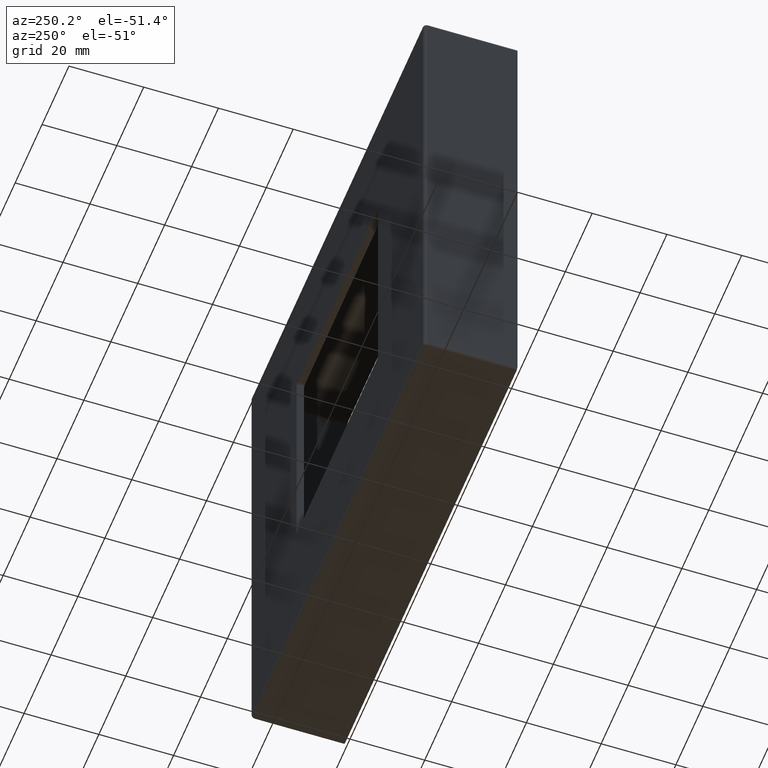
[diagram: clean part render]
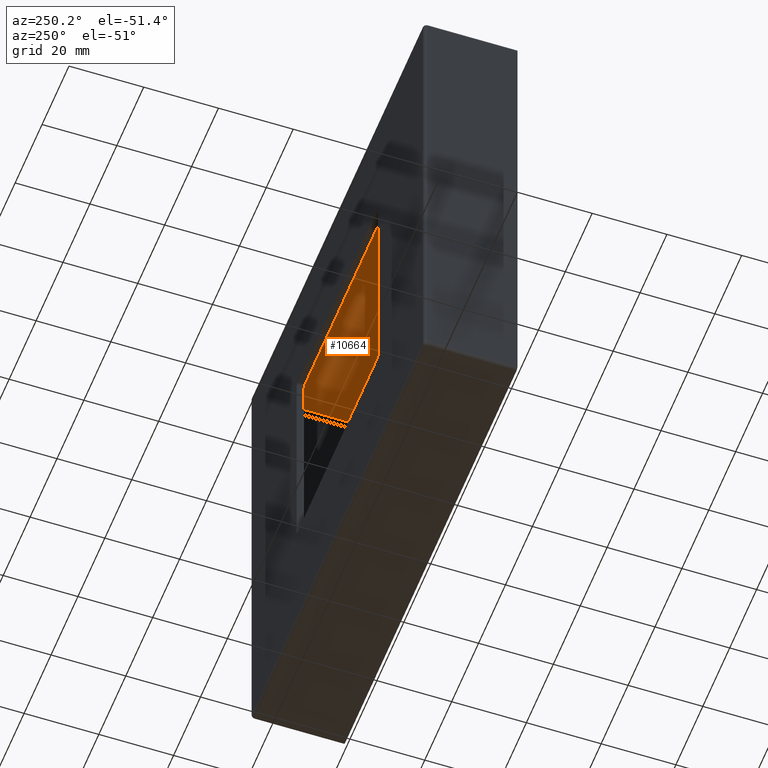
[diagram: same view with one face highlighted and labeled with its STEP entity id]
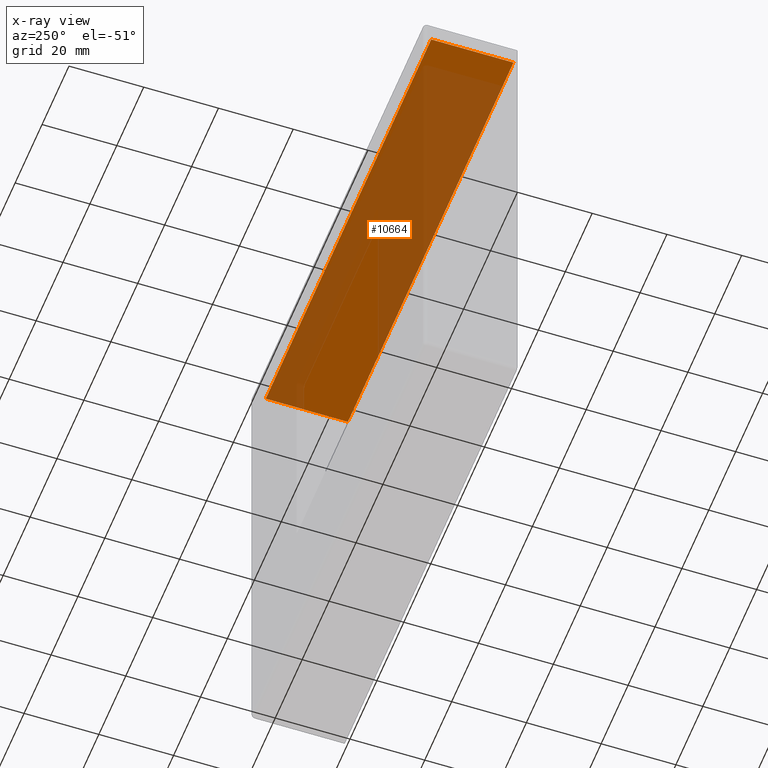
[diagram: x-ray of the same camera — body ghosted, the highlighted face saturated]
A machine part, auxiliary view. The second image highlights one B-rep face of the part: STEP entity #10664.
The next image is the same camera in x-ray: the body ghosted, the highlighted face saturated — about 68% of this face is hidden behind the body in this view.
In plain terms, the highlighted planar face has unit normal (0, 0, -1).
Its self-contained STEP definition (entity closure, byte-faithful):
#190 = ORIENTED_EDGE ( 'NONE', *, *, #12700, .T. ) ;
#638 = CARTESIAN_POINT ( 'NONE',  ( -64.49999999999997158, 25.00000000000000000, 62.50000000000000000 ) ) ;
#644 = LINE ( 'NONE', #11401, #1493 ) ;
#1077 = CARTESIAN_POINT ( 'NONE',  ( -61.49999999999997158, 23.00000000000000000, 62.50000000000000000 ) ) ;
#1493 = VECTOR ( 'NONE', #9042, 1000.000000000000000 ) ;
#2068 = ORIENTED_EDGE ( 'NONE', *, *, #10125, .T. ) ;
#2443 = DIRECTION ( 'NONE',  ( -0.000000000000000000, 1.000000000000000000, -0.000000000000000000 ) ) ;
#2688 = ORIENTED_EDGE ( 'NONE', *, *, #4983, .F. ) ;
#2727 = EDGE_LOOP ( 'NONE', ( #190, #8501, #2688, #2068 ) ) ;
#3020 = VECTOR ( 'NONE', #2443, 1000.000000000000000 ) ;
#4371 = VERTEX_POINT ( 'NONE', #15159 ) ;
#4983 = EDGE_CURVE ( 'NONE', #5892, #4371, #5088, .T. ) ;
#5028 = PLANE ( 'NONE',  #6138 ) ;
#5088 = LINE ( 'NONE', #5639, #9961 ) ;
#5374 = LINE ( 'NONE', #9176, #10027 ) ;
#5639 = CARTESIAN_POINT ( 'NONE',  ( -64.49999999999997158, 0.000000000000000000, 62.50000000000000000 ) ) ;
#5892 = VERTEX_POINT ( 'NONE', #15025 ) ;
#6055 = CARTESIAN_POINT ( 'NONE',  ( 61.50000000000000000, 22.00000000000000000, 62.50000000000000000 ) ) ;
#6138 = AXIS2_PLACEMENT_3D ( 'NONE', #638, #11487, #11537 ) ;
#7038 = LINE ( 'NONE', #1077, #3020 ) ;
#7473 = VERTEX_POINT ( 'NONE', #16521 ) ;
#8501 = ORIENTED_EDGE ( 'NONE', *, *, #8595, .T. ) ;
#8595 = EDGE_CURVE ( 'NONE', #17444, #4371, #5374, .T. ) ;
#9042 = DIRECTION ( 'NONE',  ( 1.000000000000000000, -0.000000000000000000, 0.000000000000000000 ) ) ;
#9176 = CARTESIAN_POINT ( 'NONE',  ( 61.50000000000000000, 0.000000000000000000, 62.50000000000000000 ) ) ;
#9961 = VECTOR ( 'NONE', #11127, 1000.000000000000000 ) ;
#10027 = VECTOR ( 'NONE', #13347, 1000.000000000000000 ) ;
#10125 = EDGE_CURVE ( 'NONE', #5892, #7473, #7038, .T. ) ;
#10664 = ADVANCED_FACE ( 'NONE', ( #14845 ), #5028, .T. ) ;
#11127 = DIRECTION ( 'NONE',  ( 1.000000000000000000, -0.000000000000000000, 0.000000000000000000 ) ) ;
#11401 = CARTESIAN_POINT ( 'NONE',  ( -64.49999999999997158, 22.00000000000000000, 62.50000000000000000 ) ) ;
#11487 = DIRECTION ( 'NONE',  ( 0.000000000000000000, 0.000000000000000000, -1.000000000000000000 ) ) ;
#11537 = DIRECTION ( 'NONE',  ( -1.000000000000000000, 0.000000000000000000, -0.000000000000000000 ) ) ;
#12700 = EDGE_CURVE ( 'NONE', #7473, #17444, #644, .T. ) ;
#13347 = DIRECTION ( 'NONE',  ( 0.000000000000000000, -1.000000000000000000, 0.000000000000000000 ) ) ;
#14845 = FACE_OUTER_BOUND ( 'NONE', #2727, .T. ) ;
#15025 = CARTESIAN_POINT ( 'NONE',  ( -61.49999999999997158, 0.000000000000000000, 62.50000000000000000 ) ) ;
#15159 = CARTESIAN_POINT ( 'NONE',  ( 61.50000000000000000, 0.000000000000000000, 62.50000000000000000 ) ) ;
#16521 = CARTESIAN_POINT ( 'NONE',  ( -61.49999999999997158, 22.00000000000000000, 62.50000000000000000 ) ) ;
#17444 = VERTEX_POINT ( 'NONE', #6055 ) ;